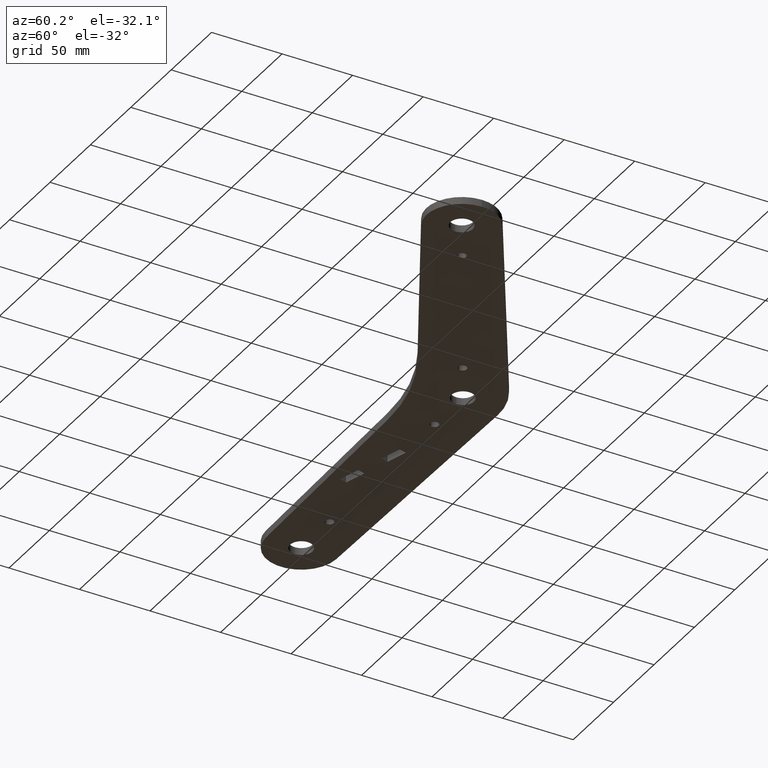
[diagram: clean part render]
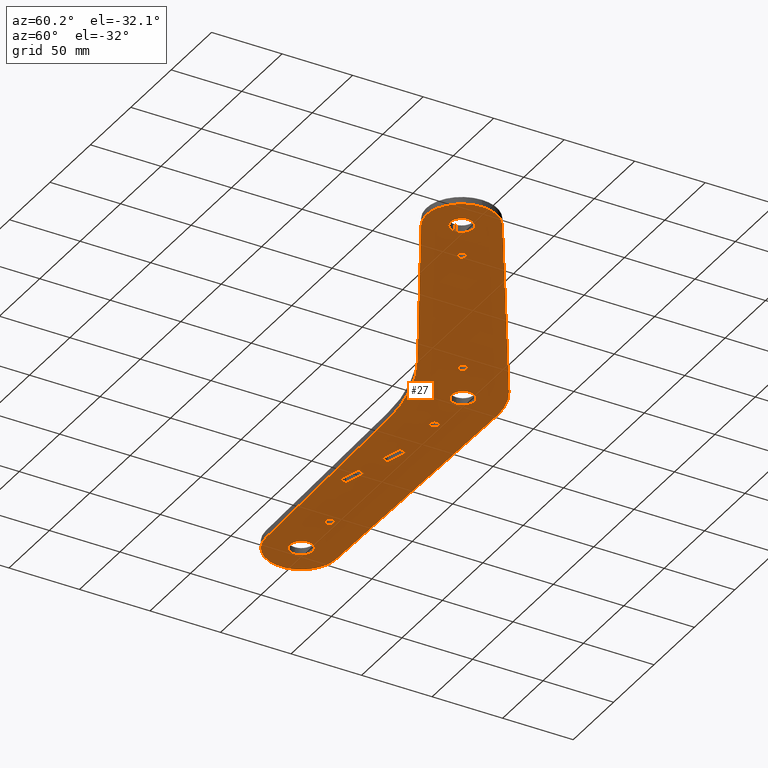
[diagram: same view with one face highlighted and labeled with its STEP entity id]
A machine part, auxiliary view. The second image highlights one B-rep face of the part: STEP entity #27.
In plain terms, the highlighted planar face has unit normal (0, 0, 1).
Its self-contained STEP definition (entity closure, byte-faithful):
#1 = AXIS2_PLACEMENT_3D ( 'NONE', #349, #536, #908 ) ;
#2 = DIRECTION ( 'NONE',  ( 0.000000000000000000, 0.000000000000000000, 1.000000000000000000 ) ) ;
#3 = CARTESIAN_POINT ( 'NONE',  ( 173.2050807568876110, -100.0000000000001990, -5.000000000000000000 ) ) ;
#9 = VECTOR ( 'NONE', #895, 1000.000000000000000 ) ;
#10 = LINE ( 'NONE', #873, #956 ) ;
#13 = ORIENTED_EDGE ( 'NONE', *, *, #603, .F. ) ;
#14 = EDGE_CURVE ( 'NONE', #404, #403, #60, .T. ) ;
#17 = DIRECTION ( 'NONE',  ( 0.000000000000000000, 0.000000000000000000, 1.000000000000000000 ) ) ;
#21 = VERTEX_POINT ( 'NONE', #950 ) ;
#25 = FACE_BOUND ( 'NONE', #978, .T. ) ;
#27 = ADVANCED_FACE ( 'NONE', ( #305, #1144, #116, #1044, #863, #696, #316, #310, #25, #775 ), #690, .F. ) ;
#30 = LINE ( 'NONE', #953, #1028 ) ;
#32 = VECTOR ( 'NONE', #629, 1000.000000000000000 ) ;
#36 = CARTESIAN_POINT ( 'NONE',  ( -35.00000000000000000, 0.000000000000000000, -5.000000000000000000 ) ) ;
#39 = VERTEX_POINT ( 'NONE', #798 ) ;
#42 = EDGE_CURVE ( 'NONE', #364, #882, #712, .T. ) ;
#53 = DIRECTION ( 'NONE',  ( 1.000000000000000000, 0.000000000000000000, 0.000000000000000000 ) ) ;
#56 = DIRECTION ( 'NONE',  ( 0.000000000000000000, 0.000000000000000000, 1.000000000000000000 ) ) ;
#60 = CIRCLE ( 'NONE', #650, 3.000000000000002665 ) ;
#71 = ORIENTED_EDGE ( 'NONE', *, *, #1066, .T. ) ;
#73 = CARTESIAN_POINT ( 'NONE',  ( -93.73356143632624082, -48.50049479333792846, -5.000000000000000000 ) ) ;
#88 = CARTESIAN_POINT ( 'NONE',  ( -208.0000000000000284, 9.797174393178845379E-16, -5.000000000000000000 ) ) ;
#97 = ORIENTED_EDGE ( 'NONE', *, *, #256, .F. ) ;
#103 = DIRECTION ( 'NONE',  ( 1.000000000000000000, 0.000000000000000000, 0.000000000000000000 ) ) ;
#104 = CARTESIAN_POINT ( 'NONE',  ( 142.8941916244323806, -82.50000000000000000, -5.000000000000000000 ) ) ;
#109 = DIRECTION ( 'NONE',  ( 1.000000000000000000, 0.000000000000000000, 0.000000000000000000 ) ) ;
#110 = CARTESIAN_POINT ( 'NONE',  ( 0.000000000000000000, 0.000000000000000000, -5.000000000000000000 ) ) ;
#113 = DIRECTION ( 'NONE',  ( 0.000000000000000000, 0.000000000000000000, 1.000000000000000000 ) ) ;
#116 = FACE_BOUND ( 'NONE', #763, .T. ) ;
#120 = DIRECTION ( 'NONE',  ( 0.9998476951563911586, -0.01745240643728373023, 0.000000000000000000 ) ) ;
#128 = DIRECTION ( 'NONE',  ( 0.000000000000000000, 0.000000000000000000, 1.000000000000000000 ) ) ;
#133 = CARTESIAN_POINT ( 'NONE',  ( 25.11045735940951218, -46.49366147612066413, -5.000000000000000000 ) ) ;
#145 = CARTESIAN_POINT ( 'NONE',  ( -60.26289497761984393, -38.26748512804260116, -5.000000000000000000 ) ) ;
#146 = DIRECTION ( 'NONE',  ( 1.000000000000000000, 0.000000000000000000, 0.000000000000000000 ) ) ;
#147 = AXIS2_PLACEMENT_3D ( 'NONE', #1172, #518, #431 ) ;
#152 = ORIENTED_EDGE ( 'NONE', *, *, #976, .T. ) ;
#154 = CARTESIAN_POINT ( 'NONE',  ( -118.8407654579053627, -19.05120652197093634, -5.000000000000000888 ) ) ;
#159 = ORIENTED_EDGE ( 'NONE', *, *, #160, .T. ) ;
#160 = EDGE_CURVE ( 'NONE', #572, #490, #637, .T. ) ;
#163 = CARTESIAN_POINT ( 'NONE',  ( -86.94890620470168585, -3.654151174475197994, -5.000000000000000888 ) ) ;
#164 = CARTESIAN_POINT ( 'NONE',  ( -120.4195726634080756, -13.88716083977052307, -5.000000000000000888 ) ) ;
#167 = VERTEX_POINT ( 'NONE', #163 ) ;
#169 = EDGE_CURVE ( 'NONE', #1104, #543, #492, .T. ) ;
#170 = CARTESIAN_POINT ( 'NONE',  ( -17.75034098412902850, 17.50197332637099379, -5.000000000000000000 ) ) ;
#175 = CARTESIAN_POINT ( 'NONE',  ( -16.17153377862632624, 12.33792764417058763, -5.000000000000000000 ) ) ;
#177 = ORIENTED_EDGE ( 'NONE', *, *, #14, .T. ) ;
#178 = CIRCLE ( 'NONE', #864, 3.000000000000002665 ) ;
#183 = DIRECTION ( 'NONE',  ( 0.2923717047227235577, -0.9563047559630395433, 0.000000000000000000 ) ) ;
#187 = AXIS2_PLACEMENT_3D ( 'NONE', #1177, #901, #53 ) ;
#190 = CARTESIAN_POINT ( 'NONE',  ( 198.2050807568876110, -100.0000000000001990, -5.000000000000000000 ) ) ;
#195 = DIRECTION ( 'NONE',  ( 1.000000000000000000, 0.000000000000000000, 0.000000000000000000 ) ) ;
#205 = VERTEX_POINT ( 'NONE', #753 ) ;
#210 = CARTESIAN_POINT ( 'NONE',  ( -85.37009899919897293, -8.818196856675612594, -5.000000000000000888 ) ) ;
#213 = VERTEX_POINT ( 'NONE', #745 ) ;
#220 = DIRECTION ( 'NONE',  ( 0.000000000000000000, 0.000000000000000000, 1.000000000000000000 ) ) ;
#222 = VERTEX_POINT ( 'NONE', #1102 ) ;
#236 = CARTESIAN_POINT ( 'NONE',  ( 161.0848402507290302, -121.8654926784849835, -5.000000000000000000 ) ) ;
#256 = EDGE_CURVE ( 'NONE', #704, #39, #1070, .T. ) ;
#257 = EDGE_CURVE ( 'NONE', #1189, #1201, #607, .T. ) ;
#265 = EDGE_CURVE ( 'NONE', #490, #458, #30, .T. ) ;
#271 = CARTESIAN_POINT ( 'NONE',  ( -17.75034098412902850, 17.50197332637099379, -5.000000000000000000 ) ) ;
#272 = LINE ( 'NONE', #470, #1096 ) ;
#274 = CIRCLE ( 'NONE', #768, 3.000000000000002665 ) ;
#275 = ORIENTED_EDGE ( 'NONE', *, *, #328, .F. ) ;
#279 = EDGE_CURVE ( 'NONE', #1025, #738, #274, .T. ) ;
#280 = EDGE_CURVE ( 'NONE', #403, #404, #178, .T. ) ;
#287 = ORIENTED_EDGE ( 'NONE', *, *, #265, .T. ) ;
#288 = EDGE_CURVE ( 'NONE', #39, #777, #10, .T. ) ;
#289 = EDGE_LOOP ( 'NONE', ( #1112, #657 ) ) ;
#295 = EDGE_CURVE ( 'NONE', #1196, #205, #590, .T. ) ;
#297 = CIRCLE ( 'NONE', #608, 150.0000000000000000 ) ;
#298 = DIRECTION ( 'NONE',  ( 1.000000000000000000, 0.000000000000000000, 0.000000000000000000 ) ) ;
#302 = CIRCLE ( 'NONE', #416, 8.000000000000007105 ) ;
#303 = CARTESIAN_POINT ( 'NONE',  ( 27.31088913245535110, -17.50000000000000000, -5.000000000000000000 ) ) ;
#305 = FACE_BOUND ( 'NONE', #964, .T. ) ;
#308 = CARTESIAN_POINT ( 'NONE',  ( 30.31088913245535110, -17.50000000000000000, -5.000000000000000000 ) ) ;
#310 = FACE_BOUND ( 'NONE', #758, .T. ) ;
#313 = AXIS2_PLACEMENT_3D ( 'NONE', #477, #113, #195 ) ;
#314 = LINE ( 'NONE', #957, #918 ) ;
#316 = FACE_BOUND ( 'NONE', #289, .T. ) ;
#317 = EDGE_CURVE ( 'NONE', #738, #1025, #411, .T. ) ;
#322 = ORIENTED_EDGE ( 'NONE', *, *, #757, .T. ) ;
#326 = ORIENTED_EDGE ( 'NONE', *, *, #803, .T. ) ;
#328 = EDGE_CURVE ( 'NONE', #21, #1034, #314, .T. ) ;
#342 = ORIENTED_EDGE ( 'NONE', *, *, #288, .F. ) ;
#349 = CARTESIAN_POINT ( 'NONE',  ( 0.000000000000000000, 0.000000000000000000, -5.000000000000000000 ) ) ;
#352 = EDGE_CURVE ( 'NONE', #837, #398, #822, .T. ) ;
#363 = DIRECTION ( 'NONE',  ( 1.000000000000000000, 0.000000000000000000, 0.000000000000000000 ) ) ;
#364 = VERTEX_POINT ( 'NONE', #500 ) ;
#372 = AXIS2_PLACEMENT_3D ( 'NONE', #3, #779, #405 ) ;
#380 = VERTEX_POINT ( 'NONE', #210 ) ;
#383 = DIRECTION ( 'NONE',  ( 0.000000000000000000, 0.000000000000000000, 1.000000000000000000 ) ) ;
#389 = DIRECTION ( 'NONE',  ( 0.000000000000000000, 0.000000000000000000, 1.000000000000000000 ) ) ;
#390 = CARTESIAN_POINT ( 'NONE',  ( -38.00000000000000711, 3.673940397442059868E-16, -5.000000000000000000 ) ) ;
#398 = VERTEX_POINT ( 'NONE', #773 ) ;
#400 = VECTOR ( 'NONE', #527, 1000.000000000000227 ) ;
#401 = DIRECTION ( 'NONE',  ( 1.000000000000000000, 0.000000000000000000, 0.000000000000000000 ) ) ;
#403 = VERTEX_POINT ( 'NONE', #303 ) ;
#404 = VERTEX_POINT ( 'NONE', #494 ) ;
#405 = DIRECTION ( 'NONE',  ( 1.000000000000000000, 0.000000000000000000, 0.000000000000000000 ) ) ;
#408 = ORIENTED_EDGE ( 'NONE', *, *, #499, .T. ) ;
#411 = CIRCLE ( 'NONE', #450, 3.000000000000002665 ) ;
#416 = AXIS2_PLACEMENT_3D ( 'NONE', #1017, #567, #455 ) ;
#417 = DIRECTION ( 'NONE',  ( -1.000000000000000000, 0.000000000000000000, 0.000000000000000000 ) ) ;
#420 = EDGE_CURVE ( 'NONE', #1034, #921, #297, .T. ) ;
#423 = CARTESIAN_POINT ( 'NONE',  ( -47.61098567754208233, -177.6866175470294422, -5.000000000000000000 ) ) ;
#429 = DIRECTION ( 'NONE',  ( 1.000000000000000000, 0.000000000000000000, 0.000000000000000000 ) ) ;
#431 = DIRECTION ( 'NONE',  ( 1.000000000000000000, 0.000000000000000000, 0.000000000000000000 ) ) ;
#433 = ORIENTED_EDGE ( 'NONE', *, *, #722, .T. ) ;
#435 = LINE ( 'NONE', #73, #9 ) ;
#441 = VERTEX_POINT ( 'NONE', #794 ) ;
#442 = CARTESIAN_POINT ( 'NONE',  ( 173.2050807568876110, -100.0000000000001990, -5.000000000000000000 ) ) ;
#447 = CARTESIAN_POINT ( 'NONE',  ( -192.0000000000000000, 0.000000000000000000, -5.000000000000000000 ) ) ;
#450 = AXIS2_PLACEMENT_3D ( 'NONE', #36, #383, #298 ) ;
#455 = DIRECTION ( 'NONE',  ( 1.000000000000000000, 0.000000000000000000, 0.000000000000000000 ) ) ;
#458 = VERTEX_POINT ( 'NONE', #154 ) ;
#460 = CIRCLE ( 'NONE', #1136, 8.000000000000007105 ) ;
#470 = CARTESIAN_POINT ( 'NONE',  ( -74.98998821945066595, -42.77000938077254943, -5.000000000000000000 ) ) ;
#477 = CARTESIAN_POINT ( 'NONE',  ( -200.0000000000000000, 0.000000000000000000, -5.000000000000000000 ) ) ;
#484 = DIRECTION ( 'NONE',  ( -0.8571673007021152202, 0.5150380749100493816, 0.000000000000000000 ) ) ;
#490 = VERTEX_POINT ( 'NONE', #164 ) ;
#492 = CIRCLE ( 'NONE', #1, 8.000000000000000000 ) ;
#494 = CARTESIAN_POINT ( 'NONE',  ( 33.31088913245535821, -17.50000000000000000, -5.000000000000000000 ) ) ;
#496 = DIRECTION ( 'NONE',  ( 1.000000000000000000, 0.000000000000000000, 0.000000000000000000 ) ) ;
#499 = EDGE_CURVE ( 'NONE', #458, #698, #1187, .T. ) ;
#500 = CARTESIAN_POINT ( 'NONE',  ( -70.64300575736817223, -4.315672603945669650, -5.000000000000000888 ) ) ;
#516 = DIRECTION ( 'NONE',  ( 1.000000000000000000, 0.000000000000000000, 0.000000000000000000 ) ) ;
#518 = DIRECTION ( 'NONE',  ( 0.000000000000000000, 0.000000000000000000, 1.000000000000000000 ) ) ;
#527 = DIRECTION ( 'NONE',  ( 0.8746197071393919664, -0.4848096202463438309, -0.000000000000000000 ) ) ;
#531 = EDGE_LOOP ( 'NONE', ( #544, #970 ) ) ;
#534 = LINE ( 'NONE', #236, #400 ) ;
#535 = AXIS2_PLACEMENT_3D ( 'NONE', #104, #754, #363 ) ;
#536 = DIRECTION ( 'NONE',  ( 0.000000000000000000, 0.000000000000000000, 1.000000000000000000 ) ) ;
#543 = VERTEX_POINT ( 'NONE', #619 ) ;
#544 = ORIENTED_EDGE ( 'NONE', *, *, #772, .T. ) ;
#550 = ORIENTED_EDGE ( 'NONE', *, *, #995, .F. ) ;
#557 = CIRCLE ( 'NONE', #147, 3.000000000000002665 ) ;
#560 = CARTESIAN_POINT ( 'NONE',  ( 173.2050807568876110, -100.0000000000001990, -5.000000000000000000 ) ) ;
#562 = CARTESIAN_POINT ( 'NONE',  ( 19.96048074662445160, 21.24448015517938160, -5.000000000000000000 ) ) ;
#567 = DIRECTION ( 'NONE',  ( 0.000000000000000000, 0.000000000000000000, 1.000000000000000000 ) ) ;
#569 = ORIENTED_EDGE ( 'NONE', *, *, #1051, .T. ) ;
#571 = AXIS2_PLACEMENT_3D ( 'NONE', #575, #17, #109 ) ;
#572 = VERTEX_POINT ( 'NONE', #903 ) ;
#574 = EDGE_CURVE ( 'NONE', #777, #441, #1185, .T. ) ;
#575 = CARTESIAN_POINT ( 'NONE',  ( -165.0000000000000000, 0.000000000000000000, -5.000000000000000000 ) ) ;
#579 = VERTEX_POINT ( 'NONE', #1167 ) ;
#581 = DIRECTION ( 'NONE',  ( 0.000000000000000000, 0.000000000000000000, 1.000000000000000000 ) ) ;
#586 = EDGE_CURVE ( 'NONE', #842, #213, #557, .T. ) ;
#590 = CIRCLE ( 'NONE', #748, 8.000000000000007105 ) ;
#591 = DIRECTION ( 'NONE',  ( 1.000000000000000000, 0.000000000000000000, 0.000000000000000000 ) ) ;
#593 = DIRECTION ( 'NONE',  ( 0.000000000000000000, 0.000000000000000000, 1.000000000000000000 ) ) ;
#596 = AXIS2_PLACEMENT_3D ( 'NONE', #560, #2, #661 ) ;
#603 = EDGE_CURVE ( 'NONE', #441, #222, #824, .T. ) ;
#607 = CIRCLE ( 'NONE', #313, 8.000000000000007105 ) ;
#608 = AXIS2_PLACEMENT_3D ( 'NONE', #423, #1153, #417 ) ;
#612 = CARTESIAN_POINT ( 'NONE',  ( -5.791422998877997941, -21.61388487992635632, -5.000000000000000000 ) ) ;
#617 = CARTESIAN_POINT ( 'NONE',  ( -44.99312471194955521, -27.70946327357076555, -5.000000000000000000 ) ) ;
#619 = CARTESIAN_POINT ( 'NONE',  ( -8.000000000000000000, 9.797174393178825657E-16, -5.000000000000000000 ) ) ;
#629 = DIRECTION ( 'NONE',  ( -0.9563047559630395433, -0.2923717047227235577, 0.000000000000000000 ) ) ;
#637 = LINE ( 'NONE', #271, #692 ) ;
#640 = EDGE_LOOP ( 'NONE', ( #326, #433, #678, #152 ) ) ;
#645 = EDGE_LOOP ( 'NONE', ( #177, #1149 ) ) ;
#650 = AXIS2_PLACEMENT_3D ( 'NONE', #781, #581, #496 ) ;
#657 = ORIENTED_EDGE ( 'NONE', *, *, #295, .T. ) ;
#658 = VECTOR ( 'NONE', #1194, 1000.000000000000000 ) ;
#659 = CIRCLE ( 'NONE', #187, 24.99999999999999289 ) ;
#661 = DIRECTION ( 'NONE',  ( 1.000000000000000000, 0.000000000000000000, 0.000000000000000000 ) ) ;
#678 = ORIENTED_EDGE ( 'NONE', *, *, #42, .T. ) ;
#680 = EDGE_CURVE ( 'NONE', #543, #1104, #1014, .T. ) ;
#690 = PLANE ( 'NONE',  #1148 ) ;
#692 = VECTOR ( 'NONE', #830, 1000.000000000000000 ) ;
#696 = FACE_BOUND ( 'NONE', #531, .T. ) ;
#698 = VERTEX_POINT ( 'NONE', #1109 ) ;
#704 = VERTEX_POINT ( 'NONE', #190 ) ;
#707 = CARTESIAN_POINT ( 'NONE',  ( -32.00000000000000000, 0.000000000000000000, -5.000000000000000000 ) ) ;
#709 = ORIENTED_EDGE ( 'NONE', *, *, #352, .T. ) ;
#710 = CARTESIAN_POINT ( 'NONE',  ( -165.0000000000000000, 0.000000000000000000, -5.000000000000000000 ) ) ;
#712 = LINE ( 'NONE', #145, #1088 ) ;
#713 = DIRECTION ( 'NONE',  ( 0.000000000000000000, 0.000000000000000000, 1.000000000000000000 ) ) ;
#722 = EDGE_CURVE ( 'NONE', #380, #364, #944, .T. ) ;
#725 = CARTESIAN_POINT ( 'NONE',  ( 8.000000000000000000, 0.000000000000000000, -5.000000000000000000 ) ) ;
#726 = DIRECTION ( 'NONE',  ( -0.2923717047227235577, 0.9563047559630395433, 0.000000000000000000 ) ) ;
#732 = DIRECTION ( 'NONE',  ( -0.9998476951563911586, -0.01745240643728353941, -0.000000000000000000 ) ) ;
#735 = CARTESIAN_POINT ( 'NONE',  ( 165.2050807568876110, -100.0000000000001990, -5.000000000000000000 ) ) ;
#738 = VERTEX_POINT ( 'NONE', #390 ) ;
#745 = CARTESIAN_POINT ( 'NONE',  ( 145.8941916244323806, -82.50000000000000000, -5.000000000000000000 ) ) ;
#746 = DIRECTION ( 'NONE',  ( 1.000000000000000000, 0.000000000000000000, 0.000000000000000000 ) ) ;
#748 = AXIS2_PLACEMENT_3D ( 'NONE', #1146, #128, #103 ) ;
#753 = CARTESIAN_POINT ( 'NONE',  ( 181.2050807568876394, -100.0000000000001990, -5.000000000000000000 ) ) ;
#754 = DIRECTION ( 'NONE',  ( 0.000000000000000000, 0.000000000000000000, 1.000000000000000000 ) ) ;
#757 = EDGE_CURVE ( 'NONE', #1201, #1189, #302, .T. ) ;
#758 = EDGE_LOOP ( 'NONE', ( #1041, #1159 ) ) ;
#763 = EDGE_LOOP ( 'NONE', ( #709, #569 ) ) ;
#768 = AXIS2_PLACEMENT_3D ( 'NONE', #1141, #220, #591 ) ;
#769 = ORIENTED_EDGE ( 'NONE', *, *, #257, .T. ) ;
#772 = EDGE_CURVE ( 'NONE', #213, #842, #945, .T. ) ;
#773 = CARTESIAN_POINT ( 'NONE',  ( -168.0000000000000000, 3.673940397442044091E-16, -5.000000000000000000 ) ) ;
#775 = FACE_OUTER_BOUND ( 'NONE', #926, .T. ) ;
#777 = VERTEX_POINT ( 'NONE', #562 ) ;
#779 = DIRECTION ( 'NONE',  ( 0.000000000000000000, 0.000000000000000000, 1.000000000000000000 ) ) ;
#781 = CARTESIAN_POINT ( 'NONE',  ( 30.31088913245535110, -17.50000000000000000, -5.000000000000000000 ) ) ;
#794 = CARTESIAN_POINT ( 'NONE',  ( -6.664043320742175425, 28.37849987789320139, -5.000000000000000000 ) ) ;
#795 = LINE ( 'NONE', #170, #32 ) ;
#798 = CARTESIAN_POINT ( 'NONE',  ( 186.0810326296388553, -78.57081748244732466, -5.000000000000000000 ) ) ;
#803 = EDGE_CURVE ( 'NONE', #167, #380, #272, .T. ) ;
#810 = CIRCLE ( 'NONE', #1039, 3.000000000000002665 ) ;
#818 = CARTESIAN_POINT ( 'NONE',  ( -200.4363101609320950, 24.99619237890977530, -5.000000000000000000 ) ) ;
#822 = CIRCLE ( 'NONE', #571, 3.000000000000002665 ) ;
#824 = LINE ( 'NONE', #818, #1173 ) ;
#830 = DIRECTION ( 'NONE',  ( -0.9563047559630395433, -0.2923717047227235577, 0.000000000000000000 ) ) ;
#831 = DIRECTION ( 'NONE',  ( 0.000000000000000000, 0.000000000000000000, 1.000000000000000000 ) ) ;
#836 = CARTESIAN_POINT ( 'NONE',  ( -162.0000000000000000, 0.000000000000000000, -5.000000000000000000 ) ) ;
#837 = VERTEX_POINT ( 'NONE', #836 ) ;
#842 = VERTEX_POINT ( 'NONE', #1121 ) ;
#847 = DIRECTION ( 'NONE',  ( 0.2923717047227235577, -0.9563047559630395433, 0.000000000000000000 ) ) ;
#851 = CIRCLE ( 'NONE', #596, 24.99999999999999289 ) ;
#863 = FACE_BOUND ( 'NONE', #645, .T. ) ;
#864 = AXIS2_PLACEMENT_3D ( 'NONE', #308, #389, #401 ) ;
#873 = CARTESIAN_POINT ( 'NONE',  ( 186.0810326296388553, -78.57081748244732466, -5.000000000000000000 ) ) ;
#876 = DIRECTION ( 'NONE',  ( 1.000000000000000000, 0.000000000000000000, -0.000000000000000000 ) ) ;
#878 = CARTESIAN_POINT ( 'NONE',  ( -72.22181296287087093, 0.8483730782547425076, -5.000000000000000000 ) ) ;
#882 = VERTEX_POINT ( 'NONE', #878 ) ;
#886 = ORIENTED_EDGE ( 'NONE', *, *, #420, .F. ) ;
#895 = DIRECTION ( 'NONE',  ( -0.2923717047227235577, 0.9563047559630395433, 0.000000000000000000 ) ) ;
#899 = ORIENTED_EDGE ( 'NONE', *, *, #1026, .F. ) ;
#901 = DIRECTION ( 'NONE',  ( 0.000000000000000000, 0.000000000000000000, 1.000000000000000000 ) ) ;
#903 = CARTESIAN_POINT ( 'NONE',  ( -105.6924794215772749, -9.384636587040585454, -5.000000000000000000 ) ) ;
#908 = DIRECTION ( 'NONE',  ( 1.000000000000000000, 0.000000000000000000, 0.000000000000000000 ) ) ;
#909 = DIRECTION ( 'NONE',  ( 0.9563047559630395433, 0.2923717047227235577, 0.000000000000000000 ) ) ;
#918 = VECTOR ( 'NONE', #120, 1000.000000000000114 ) ;
#921 = VERTEX_POINT ( 'NONE', #133 ) ;
#926 = EDGE_LOOP ( 'NONE', ( #1040, #342, #97, #1060, #899, #886, #275, #550, #13 ) ) ;
#938 = VECTOR ( 'NONE', #909, 1000.000000000000000 ) ;
#944 = LINE ( 'NONE', #175, #658 ) ;
#945 = CIRCLE ( 'NONE', #535, 3.000000000000002665 ) ;
#950 = CARTESIAN_POINT ( 'NONE',  ( -200.4363101609320950, -24.99619237890977530, -5.000000000000000000 ) ) ;
#951 = ORIENTED_EDGE ( 'NONE', *, *, #279, .T. ) ;
#953 = CARTESIAN_POINT ( 'NONE',  ( -108.4606546781570415, -53.00301904606786962, -5.000000000000000000 ) ) ;
#956 = VECTOR ( 'NONE', #484, 1000.000000000000114 ) ;
#957 = CARTESIAN_POINT ( 'NONE',  ( -200.4363101609320950, -24.99619237890977530, -5.000000000000000000 ) ) ;
#964 = EDGE_LOOP ( 'NONE', ( #287, #408, #71, #159 ) ) ;
#970 = ORIENTED_EDGE ( 'NONE', *, *, #586, .T. ) ;
#971 = AXIS2_PLACEMENT_3D ( 'NONE', #612, #713, #146 ) ;
#976 = EDGE_CURVE ( 'NONE', #882, #167, #795, .T. ) ;
#978 = EDGE_LOOP ( 'NONE', ( #322, #769 ) ) ;
#995 = EDGE_CURVE ( 'NONE', #222, #21, #659, .T. ) ;
#996 = DIRECTION ( 'NONE',  ( 0.000000000000000000, 0.000000000000000000, 1.000000000000000000 ) ) ;
#1000 = ORIENTED_EDGE ( 'NONE', *, *, #317, .T. ) ;
#1014 = CIRCLE ( 'NONE', #1156, 8.000000000000000000 ) ;
#1017 = CARTESIAN_POINT ( 'NONE',  ( -200.0000000000000000, 0.000000000000000000, -5.000000000000000000 ) ) ;
#1025 = VERTEX_POINT ( 'NONE', #707 ) ;
#1026 = EDGE_CURVE ( 'NONE', #921, #579, #534, .T. ) ;
#1028 = VECTOR ( 'NONE', #847, 1000.000000000000000 ) ;
#1034 = VERTEX_POINT ( 'NONE', #617 ) ;
#1039 = AXIS2_PLACEMENT_3D ( 'NONE', #710, #996, #516 ) ;
#1040 = ORIENTED_EDGE ( 'NONE', *, *, #574, .F. ) ;
#1041 = ORIENTED_EDGE ( 'NONE', *, *, #169, .T. ) ;
#1044 = FACE_BOUND ( 'NONE', #1083, .T. ) ;
#1050 = CARTESIAN_POINT ( 'NONE',  ( -5.791422998877997941, -21.61388487992635632, -5.000000000000000000 ) ) ;
#1051 = EDGE_CURVE ( 'NONE', #398, #837, #810, .T. ) ;
#1060 = ORIENTED_EDGE ( 'NONE', *, *, #1143, .F. ) ;
#1066 = EDGE_CURVE ( 'NONE', #698, #572, #435, .T. ) ;
#1070 = CIRCLE ( 'NONE', #372, 24.99999999999999289 ) ;
#1083 = EDGE_LOOP ( 'NONE', ( #951, #1000 ) ) ;
#1088 = VECTOR ( 'NONE', #726, 1000.000000000000000 ) ;
#1089 = EDGE_CURVE ( 'NONE', #205, #1196, #460, .T. ) ;
#1096 = VECTOR ( 'NONE', #183, 1000.000000000000000 ) ;
#1102 = CARTESIAN_POINT ( 'NONE',  ( -200.4363101609320950, 24.99619237890977530, -5.000000000000000000 ) ) ;
#1104 = VERTEX_POINT ( 'NONE', #725 ) ;
#1109 = CARTESIAN_POINT ( 'NONE',  ( -104.1136722160745620, -14.54868226924099517, -5.000000000000000888 ) ) ;
#1112 = ORIENTED_EDGE ( 'NONE', *, *, #1089, .T. ) ;
#1121 = CARTESIAN_POINT ( 'NONE',  ( 139.8941916244323806, -82.50000000000000000, -5.000000000000000000 ) ) ;
#1136 = AXIS2_PLACEMENT_3D ( 'NONE', #442, #56, #429 ) ;
#1141 = CARTESIAN_POINT ( 'NONE',  ( -35.00000000000000000, 0.000000000000000000, -5.000000000000000000 ) ) ;
#1143 = EDGE_CURVE ( 'NONE', #579, #704, #851, .T. ) ;
#1144 = FACE_BOUND ( 'NONE', #640, .T. ) ;
#1146 = CARTESIAN_POINT ( 'NONE',  ( 173.2050807568876110, -100.0000000000001990, -5.000000000000000000 ) ) ;
#1148 = AXIS2_PLACEMENT_3D ( 'NONE', #1050, #593, #876 ) ;
#1149 = ORIENTED_EDGE ( 'NONE', *, *, #280, .T. ) ;
#1153 = DIRECTION ( 'NONE',  ( -0.000000000000000000, -0.000000000000000000, -1.000000000000000000 ) ) ;
#1156 = AXIS2_PLACEMENT_3D ( 'NONE', #110, #831, #746 ) ;
#1159 = ORIENTED_EDGE ( 'NONE', *, *, #680, .T. ) ;
#1167 = CARTESIAN_POINT ( 'NONE',  ( 161.0848402507290302, -121.8654926784849835, -5.000000000000000000 ) ) ;
#1172 = CARTESIAN_POINT ( 'NONE',  ( 142.8941916244323806, -82.50000000000000000, -5.000000000000000000 ) ) ;
#1173 = VECTOR ( 'NONE', #732, 1000.000000000000114 ) ;
#1177 = CARTESIAN_POINT ( 'NONE',  ( -200.0000000000000000, 0.000000000000000000, -5.000000000000000000 ) ) ;
#1183 = CARTESIAN_POINT ( 'NONE',  ( -16.17153377862632624, 12.33792764417058763, -5.000000000000000000 ) ) ;
#1185 = CIRCLE ( 'NONE', #971, 49.99999999999998579 ) ;
#1187 = LINE ( 'NONE', #1183, #938 ) ;
#1189 = VERTEX_POINT ( 'NONE', #88 ) ;
#1194 = DIRECTION ( 'NONE',  ( 0.9563047559630395433, 0.2923717047227235577, 0.000000000000000000 ) ) ;
#1196 = VERTEX_POINT ( 'NONE', #735 ) ;
#1201 = VERTEX_POINT ( 'NONE', #447 ) ;